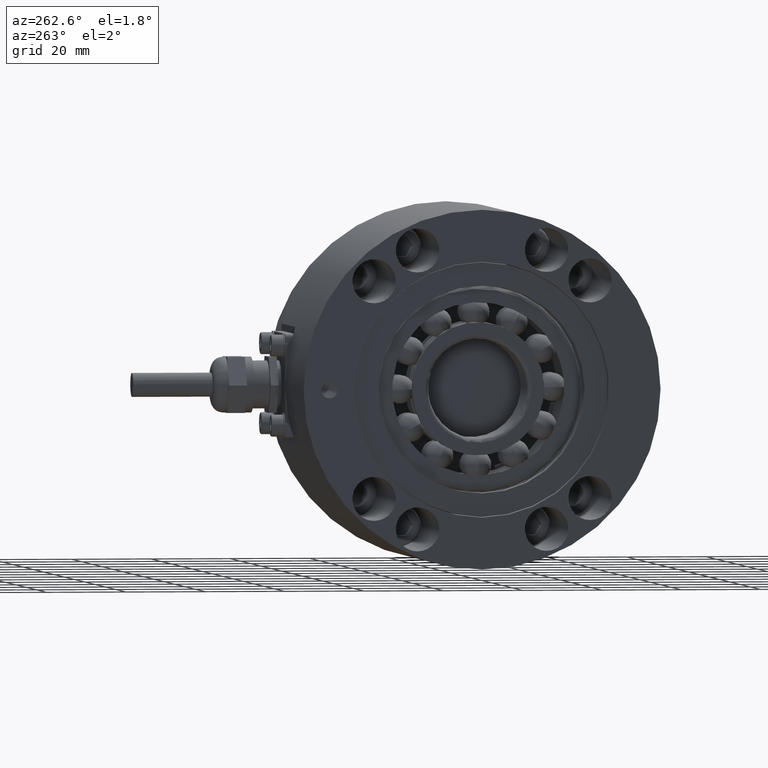
[diagram: clean part render]
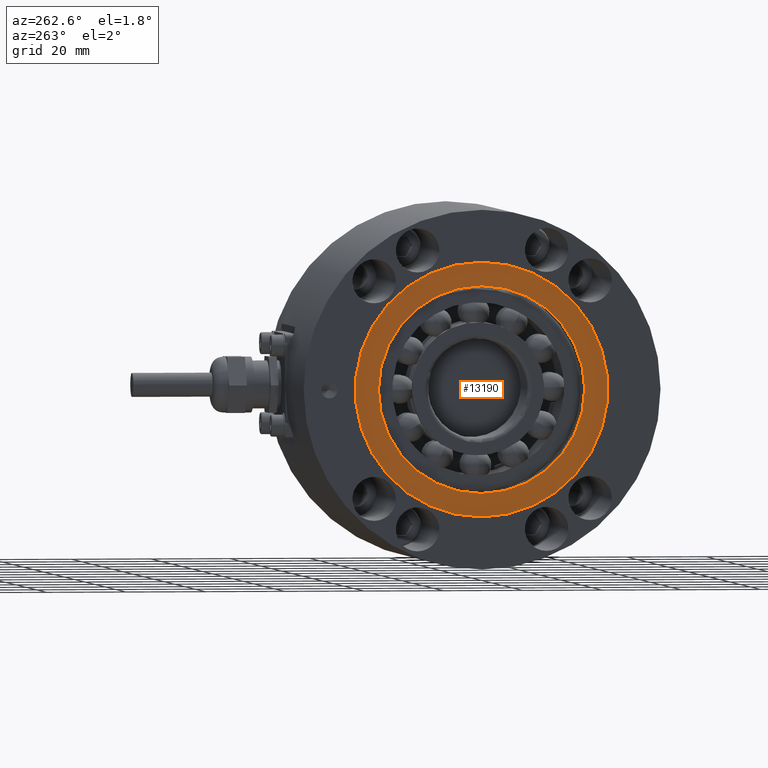
[diagram: same view with one face highlighted and labeled with its STEP entity id]
A machine part, auxiliary view. The second image highlights one B-rep face of the part: STEP entity #13190.
In plain terms, the highlighted planar face has unit normal (1, 0, 0).
Its self-contained STEP definition (entity closure, byte-faithful):
#1064 = ORIENTED_EDGE ( 'NONE', *, *, #7376, .F. ) ;
#1214 = VERTEX_POINT ( 'NONE', #13826 ) ;
#2809 = CARTESIAN_POINT ( 'NONE',  ( 0.000000000000000000, 0.000000000000000000, 31.85000000000000497 ) ) ;
#3343 = DIRECTION ( 'NONE',  ( 0.000000000000000000, 0.000000000000000000, 1.000000000000000000 ) ) ;
#3515 = DIRECTION ( 'NONE',  ( 1.000000000000000000, 0.000000000000000000, 0.000000000000000000 ) ) ;
#4328 = CARTESIAN_POINT ( 'NONE',  ( 0.000000000000000000, 0.000000000000000000, 0.000000000000000000 ) ) ;
#4387 = CIRCLE ( 'NONE', #8609, 31.85000000000000497 ) ;
#4484 = VERTEX_POINT ( 'NONE', #11709 ) ;
#4833 = VERTEX_POINT ( 'NONE', #13583 ) ;
#4860 = CIRCLE ( 'NONE', #10269, 31.85000000000000497 ) ;
#5146 = CARTESIAN_POINT ( 'NONE',  ( 0.000000000000000000, 0.000000000000000000, 0.000000000000000000 ) ) ;
#5594 = DIRECTION ( 'NONE',  ( -1.000000000000000000, -0.000000000000000000, -0.000000000000000000 ) ) ;
#5807 = EDGE_CURVE ( 'NONE', #1214, #14412, #4387, .T. ) ;
#6392 = CARTESIAN_POINT ( 'NONE',  ( 0.000000000000000000, 0.000000000000000000, 0.000000000000000000 ) ) ;
#6809 = CARTESIAN_POINT ( 'NONE',  ( 0.000000000000000000, 0.000000000000000000, 0.000000000000000000 ) ) ;
#7100 = EDGE_CURVE ( 'NONE', #14412, #1214, #4860, .T. ) ;
#7305 = ORIENTED_EDGE ( 'NONE', *, *, #12570, .F. ) ;
#7376 = EDGE_CURVE ( 'NONE', #4484, #4833, #10456, .T. ) ;
#7494 = DIRECTION ( 'NONE',  ( 0.000000000000000000, 0.000000000000000000, 1.000000000000000000 ) ) ;
#7506 = DIRECTION ( 'NONE',  ( 0.000000000000000000, 0.000000000000000000, 1.000000000000000000 ) ) ;
#8090 = ORIENTED_EDGE ( 'NONE', *, *, #5807, .T. ) ;
#8525 = DIRECTION ( 'NONE',  ( -1.000000000000000000, -0.000000000000000000, -0.000000000000000000 ) ) ;
#8609 = AXIS2_PLACEMENT_3D ( 'NONE', #6392, #13144, #7494 ) ;
#9104 = CARTESIAN_POINT ( 'NONE',  ( 0.000000000000000000, 26.00000000000000000, 0.000000000000000000 ) ) ;
#9197 = AXIS2_PLACEMENT_3D ( 'NONE', #4328, #11240, #12554 ) ;
#9564 = AXIS2_PLACEMENT_3D ( 'NONE', #9104, #3515, #13804 ) ;
#10269 = AXIS2_PLACEMENT_3D ( 'NONE', #5146, #8525, #7506 ) ;
#10456 = CIRCLE ( 'NONE', #9197, 26.00000000000000000 ) ;
#10678 = FACE_OUTER_BOUND ( 'NONE', #11279, .T. ) ;
#10695 = CIRCLE ( 'NONE', #10964, 26.00000000000000000 ) ;
#10964 = AXIS2_PLACEMENT_3D ( 'NONE', #6809, #5594, #3343 ) ;
#11168 = EDGE_LOOP ( 'NONE', ( #1064, #7305 ) ) ;
#11240 = DIRECTION ( 'NONE',  ( -1.000000000000000000, -0.000000000000000000, -0.000000000000000000 ) ) ;
#11279 = EDGE_LOOP ( 'NONE', ( #12778, #8090 ) ) ;
#11560 = PLANE ( 'NONE',  #9564 ) ;
#11709 = CARTESIAN_POINT ( 'NONE',  ( 0.000000000000000000, 0.000000000000000000, 26.00000000000000000 ) ) ;
#12554 = DIRECTION ( 'NONE',  ( 0.000000000000000000, 0.000000000000000000, 1.000000000000000000 ) ) ;
#12570 = EDGE_CURVE ( 'NONE', #4833, #4484, #10695, .T. ) ;
#12778 = ORIENTED_EDGE ( 'NONE', *, *, #7100, .T. ) ;
#13144 = DIRECTION ( 'NONE',  ( -1.000000000000000000, -0.000000000000000000, -0.000000000000000000 ) ) ;
#13190 = ADVANCED_FACE ( 'NONE', ( #13383, #10678 ), #11560, .F. ) ;
#13383 = FACE_BOUND ( 'NONE', #11168, .T. ) ;
#13583 = CARTESIAN_POINT ( 'NONE',  ( 0.000000000000000000, 3.184081677783118191E-15, -26.00000000000000000 ) ) ;
#13804 = DIRECTION ( 'NONE',  ( 0.000000000000000000, 0.000000000000000000, -1.000000000000000000 ) ) ;
#13826 = CARTESIAN_POINT ( 'NONE',  ( 0.000000000000000000, 3.900500055284320622E-15, -31.85000000000000497 ) ) ;
#14412 = VERTEX_POINT ( 'NONE', #2809 ) ;